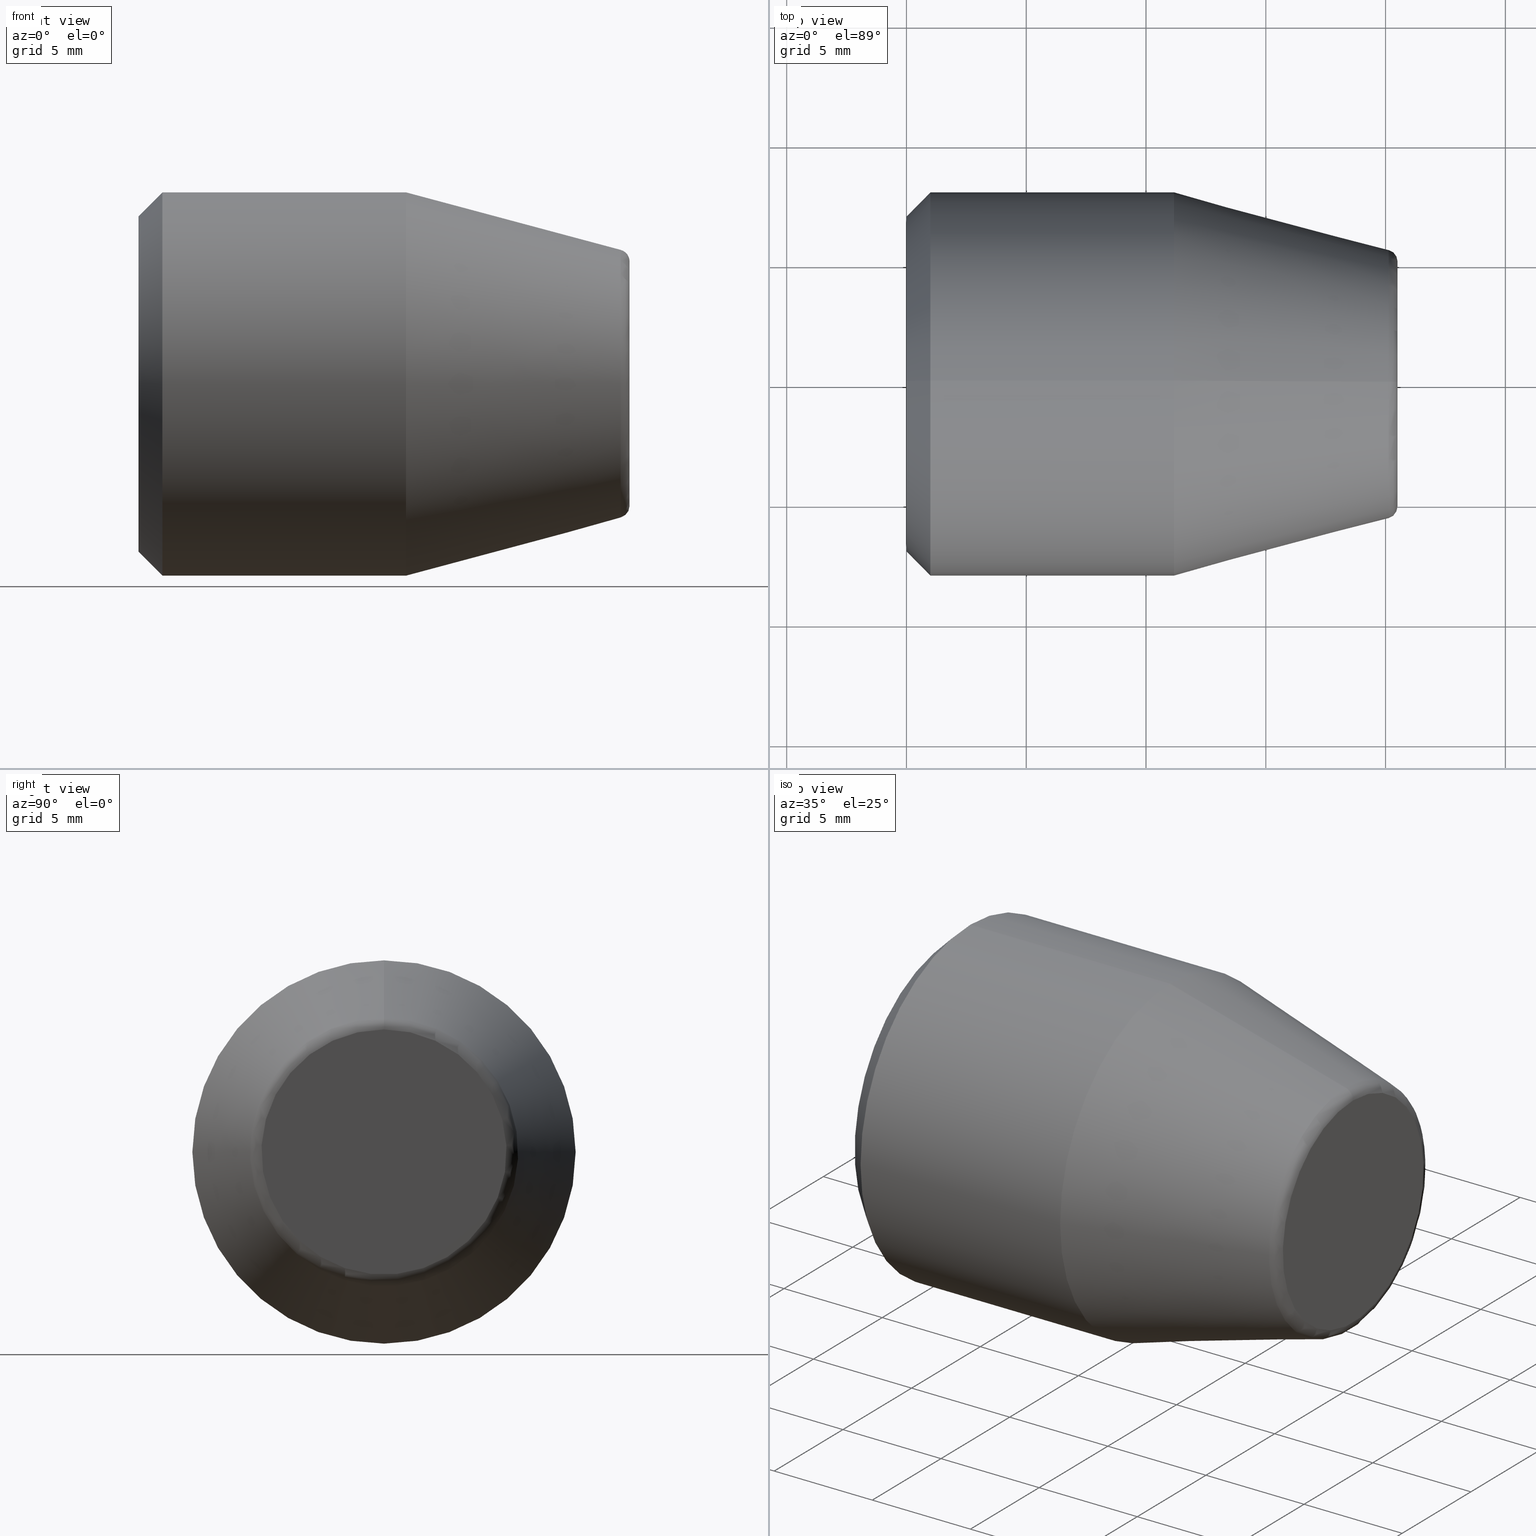
[diagram: canonical four-view strip — front | top / right | iso, engineering-drawing reading convention]
A machine part, canonical four-view strip (front | top / right | iso — engineering-drawing reading convention). The complete STEP part file that produces these views, byte-faithful:
ISO-10303-21;
HEADER;
FILE_DESCRIPTION (( 'STEP AP214' ),
    '1' );
FILE_NAME ('J00.100.016.021.STEP',
    '2022-05-19T09:20:16',
    ( '' ),
    ( '' ),
    'SwSTEP 2.0',
    'SolidWorks 2017',
    '' );
FILE_SCHEMA (( 'AUTOMOTIVE_DESIGN' ));
ENDSEC;

DATA;
#1 = CARTESIAN_POINT ( 'NONE',  ( 10.00000000000000000, 0.0000000000000000000, 0.0000000000000000000 ) ) ;
#2 = FACE_BOUND ( 'NONE', #224, .T. ) ;
#3 = EDGE_CURVE ( 'NONE', #145, #49, #368, .T. ) ;
#4 = VECTOR ( 'NONE', #229, 1000.000000000000200 ) ;
#5 = ORIENTED_EDGE ( 'NONE', *, *, #131, .T. ) ;
#6 = CARTESIAN_POINT ( 'NONE',  ( 10.00000000000000000, 2.309401076758503800, -4.000000000000000900 ) ) ;
#7 = CARTESIAN_POINT ( 'NONE',  ( 0.2538734953905270600, 1.948652659049114000, 4.000000000000002700 ) ) ;
#8 = EDGE_CURVE ( 'NONE', #21, #546, #38, .T. ) ;
#9 = FILL_AREA_STYLE ('',( #298 ) ) ;
#10 =( NAMED_UNIT ( * ) SI_UNIT ( $, .STERADIAN. ) SOLID_ANGLE_UNIT ( ) );
#11 = CARTESIAN_POINT ( 'NONE',  ( 0.6844111899594741400, -0.4041879333743195200, -4.000000000000000000 ) ) ;
#12 = EDGE_LOOP ( 'NONE', ( #457, #56, #188, #5, #285, #253 ) ) ;
#13 = DIRECTION ( 'NONE',  ( 0.0000000000000000000, 0.8660254037844386000, -0.5000000000000003300 ) ) ;
#14 = DIRECTION ( 'NONE',  ( 1.000000000000000000, 0.0000000000000000000, -0.0000000000000000000 ) ) ;
#15 = EDGE_CURVE ( 'NONE', #626, #626, #611, .T. ) ;
#16 = CARTESIAN_POINT ( 'NONE',  ( 0.2616367096296722800, -2.489839939905183800, -3.687470721369985300 ) ) ;
#17 = CONICAL_SURFACE ( 'NONE', #575, 8.000000000000000000, 0.7853981633974482800 ) ;
#18 = ORIENTED_EDGE ( 'NONE', *, *, #608, .F. ) ;
#19 = EDGE_LOOP ( 'NONE', ( #590 ) ) ;
#20 = DIRECTION ( 'NONE',  ( 0.0000000000000000000, 0.0000000000000000000, 1.000000000000000000 ) ) ;
#21 = VERTEX_POINT ( 'NONE', #170 ) ;
#22 = CARTESIAN_POINT ( 'NONE',  ( 0.4150543676130452600, 4.253854274071435300, -0.6321082693142530100 ) ) ;
#23 = PRODUCT_DEFINITION ( 'UNKNOWN', '', #564, #467 ) ;
#24 = DIRECTION ( 'NONE',  ( 0.0000000000000000000, 0.4999999999999997800, -0.8660254037844387100 ) ) ;
#25 = VECTOR ( 'NONE', #390, 1000.000000000000200 ) ;
#26 = FACE_OUTER_BOUND ( 'NONE', #501, .T. ) ;
#27 = ORIENTED_EDGE ( 'NONE', *, *, #59, .T. ) ;
#28 = CARTESIAN_POINT ( 'NONE',  ( 1.000000000000000000, 0.0000000000000000000, 0.0000000000000000000 ) ) ;
#29 = SURFACE_STYLE_USAGE ( .BOTH. , #32 ) ;
#30 = EDGE_CURVE ( 'NONE', #462, #337, #532, .T. ) ;
#31 = DIRECTION ( 'NONE',  ( -1.000000000000000000, -0.0000000000000000000, 0.0000000000000000000 ) ) ;
#32 = SURFACE_SIDE_STYLE ('',( #602 ) ) ;
#33 = CARTESIAN_POINT ( 'NONE',  ( 10.00000000000000000, 4.618802153517008500, -2.660187433275122900E-015 ) ) ;
#34 = DIRECTION ( 'NONE',  ( 1.000000000000000000, 0.0000000000000000000, 0.0000000000000000000 ) ) ;
#35 = MECHANICAL_DESIGN_GEOMETRIC_PRESENTATION_REPRESENTATION (  '', ( #533 ), #554 ) ;
#36 = B_SPLINE_CURVE_WITH_KNOTS ( 'NONE', 3,
 ( #236, #141, #186, #283, #500, #497, #594, #550, #105, #107, #340, #7, #553, #555 ),
 .UNSPECIFIED., .F., .F.,
 ( 4, 2, 2, 2, 2, 2, 4 ),
 ( 0.003041011842141596200, 0.004238236106116807400, 0.004836848238104413300, 0.005435460370092019100, 0.006632684634067230800, 0.007231296766054835800, 0.007829908898042440800 ),
 .UNSPECIFIED. ) ;
#37 = DIRECTION ( 'NONE',  ( 1.000000000000000000, 0.0000000000000000000, -0.0000000000000000000 ) ) ;
#38 = LINE ( 'NONE', #111, #313 ) ;
#39 = EDGE_LOOP ( 'NONE', ( #438 ) ) ;
#40 = DIRECTION ( 'NONE',  ( -1.000000000000000000, 0.0000000000000000000, 0.0000000000000000000 ) ) ;
#41 = APPLICATION_PROTOCOL_DEFINITION ( 'draft international standard', 'automotive_design', 1998, #328 ) ;
#42 = EDGE_CURVE ( 'NONE', #479, #193, #225, .T. ) ;
#43 = ADVANCED_BREP_SHAPE_REPRESENTATION ( 'J00.100.016.021', ( #507, #345 ), #259 ) ;
#44 = COLOUR_RGB ( '',0.6862745098039215700, 0.6078431372549019100, 0.5294117647058823600 ) ;
#45 = EDGE_LOOP ( 'NONE', ( #374 ) ) ;
#46 = CARTESIAN_POINT ( 'NONE',  ( 20.12940952255125600, 0.0000000000000000000, 5.599299419155053100 ) ) ;
#47 = FACE_OUTER_BOUND ( 'NONE', #167, .T. ) ;
#48 = DIRECTION ( 'NONE',  ( -1.000000000000000000, 0.0000000000000000000, 0.0000000000000000000 ) ) ;
#49 = VERTEX_POINT ( 'NONE', #135 ) ;
#50 = ORIENTED_EDGE ( 'NONE', *, *, #547, .F. ) ;
#51 = DIRECTION ( 'NONE',  ( 0.0000000000000000000, -0.5000000000000002200, -0.8660254037844384900 ) ) ;
#52 = CARTESIAN_POINT ( 'NONE',  ( 20.50000000000000000, 0.0000000000000000000, 0.0000000000000000000 ) ) ;
#53 = DIRECTION ( 'NONE',  ( -1.000000000000000000, -0.0000000000000000000, -0.0000000000000000000 ) ) ;
#54 = LINE ( 'NONE', #241, #323 ) ;
#55 = FACE_OUTER_BOUND ( 'NONE', #74, .T. ) ;
#56 = ORIENTED_EDGE ( 'NONE', *, *, #30, .T. ) ;
#57 = CARTESIAN_POINT ( 'NONE',  ( 0.08119784648299269200, -2.309401076758504700, -4.000000000000000900 ) ) ;
#58 = SURFACE_SIDE_STYLE ('',( #603 ) ) ;
#59 = EDGE_CURVE ( 'NONE', #483, #483, #149, .T. ) ;
#60 = CARTESIAN_POINT ( 'NONE',  ( 0.4174005900006742000, -1.573891664302362800, -4.000000000000000900 ) ) ;
#61 = FACE_BOUND ( 'NONE', #214, .T. ) ;
#62 = CARTESIAN_POINT ( 'NONE',  ( 0.6231881700867339900, 3.869969018718635700, -1.297017035861854000 ) ) ;
#63 = ORIENTED_EDGE ( 'NONE', *, *, #131, .F. ) ;
#64 = EDGE_LOOP ( 'NONE', ( #406, #18, #427 ) ) ;
#65 = ORIENTED_EDGE ( 'NONE', *, *, #3, .F. ) ;
#66 = DIRECTION ( 'NONE',  ( 0.0000000000000000000, 0.0000000000000000000, 1.000000000000000000 ) ) ;
#67 = EDGE_CURVE ( 'NONE', #552, #281, #102, .T. ) ;
#68 = UNCERTAINTY_MEASURE_WITH_UNIT (LENGTH_MEASURE( 1.000000000000000100E-005 ), #195, 'distance_accuracy_value', 'NONE');
#69 = CARTESIAN_POINT ( 'NONE',  ( 0.2616367096296723900, 2.489839939905184700, 3.687470721369984000 ) ) ;
#70 = DIRECTION ( 'NONE',  ( 0.0000000000000000000, -1.000000000000000000, -1.877893248421448300E-016 ) ) ;
#71 = FACE_BOUND ( 'NONE', #81, .T. ) ;
#72 = CARTESIAN_POINT ( 'NONE',  ( 0.5794568686004361000, 3.967190869616748800, -1.128623850500434900 ) ) ;
#73 = EDGE_CURVE ( 'NONE', #546, #337, #303, .T. ) ;
#74 = EDGE_LOOP ( 'NONE', ( #263, #387, #50 ) ) ;
#75 = CARTESIAN_POINT ( 'NONE',  ( 10.00000000000000000, -2.309401076758504700, -4.000000000000000900 ) ) ;
#76 = ADVANCED_FACE ( 'NONE', ( #331 ), #174, .T. ) ;
#77 = CARTESIAN_POINT ( 'NONE',  ( 10.00000000000000000, 2.309401076758504700, 4.000000000000000900 ) ) ;
#78 = DIRECTION ( 'NONE',  ( 0.0000000000000000000, 0.0000000000000000000, -1.000000000000000000 ) ) ;
#79 = DIRECTION ( 'NONE',  ( -1.000000000000000000, -0.0000000000000000000, -0.0000000000000000000 ) ) ;
#80 = CARTESIAN_POINT ( 'NONE',  ( 0.7008480878080847200, 3.266748298573009600, -2.341825971332365700 ) ) ;
#81 = EDGE_LOOP ( 'NONE', ( #159, #409, #571, #117, #234, #65 ) ) ;
#82 = CARTESIAN_POINT ( 'NONE',  ( 0.08119784648299269200, 4.618802153517007600, -1.734723475976807100E-015 ) ) ;
#83 = DIRECTION ( 'NONE',  ( -1.000000000000000000, 0.0000000000000000000, 0.0000000000000000000 ) ) ;
#84 = AXIS2_PLACEMENT_3D ( 'NONE', #33, #125, #581 ) ;
#85 = DIRECTION ( 'NONE',  ( -1.000000000000000000, -0.0000000000000000000, -0.0000000000000000000 ) ) ;
#86 = CARTESIAN_POINT ( 'NONE',  ( 10.00000000000000000, 4.618802153517007600, -1.734723475976807100E-015 ) ) ;
#87 = CARTESIAN_POINT ( 'NONE',  ( -3.622083305935164300, 0.0000000000000000000, 0.0000000000000000000 ) ) ;
#88 = PLANE ( 'NONE',  #333 ) ;
#89 = AXIS2_PLACEMENT_3D ( 'NONE', #77, #422, #472 ) ;
#90 = DIRECTION ( 'NONE',  ( 0.0000000000000000000, 0.0000000000000000000, 1.000000000000000000 ) ) ;
#91 = LINE ( 'NONE', #106, #595 ) ;
#92 = ORIENTED_EDGE ( 'NONE', *, *, #178, .F. ) ;
#93 = PRODUCT_RELATED_PRODUCT_CATEGORY ( 'part', '', ( #354 ) ) ;
#94 = AXIS2_PLACEMENT_3D ( 'NONE', #458, #309, #508 ) ;
#95 = LINE ( 'NONE', #134, #138 ) ;
#96 = ORIENTED_EDGE ( 'NONE', *, *, #372, .F. ) ;
#97 = CIRCLE ( 'NONE', #557, 8.000000000000000000 ) ;
#98 = ORIENTED_EDGE ( 'NONE', *, *, #276, .F. ) ;
#99 = DIRECTION ( 'NONE',  ( -1.000000000000000000, -0.0000000000000000000, 0.0000000000000000000 ) ) ;
#100 = CARTESIAN_POINT ( 'NONE',  ( 0.0000000000000000000, 0.0000000000000000000, 4.700000000000000200 ) ) ;
#101 = EDGE_CURVE ( 'NONE', #193, #179, #578, .T. ) ;
#102 = LINE ( 'NONE', #361, #4 ) ;
#103 = CARTESIAN_POINT ( 'NONE',  ( 10.00000000000000000, 3.464101615137754800, -2.000000000000000900 ) ) ;
#104 = EDGE_LOOP ( 'NONE', ( #577, #481, #156 ) ) ;
#105 = CARTESIAN_POINT ( 'NONE',  ( 0.6372498205524092000, 0.8022323920327941700, 4.000000000000000900 ) ) ;
#106 = CARTESIAN_POINT ( 'NONE',  ( 10.00000000000000000, -2.309401076758504700, -4.000000000000000900 ) ) ;
#107 = CARTESIAN_POINT ( 'NONE',  ( 0.4717933530190095400, 1.382801828582293200, 4.000000000000001800 ) ) ;
#108 = VECTOR ( 'NONE', #271, 1000.000000000000000 ) ;
#109 = ORIENTED_EDGE ( 'NONE', *, *, #372, .T. ) ;
#110 = CARTESIAN_POINT ( 'NONE',  ( 0.2603953882378624600, -1.951005993248784900, -4.000000000000000900 ) ) ;
#111 = CARTESIAN_POINT ( 'NONE',  ( 10.00000000000000000, -2.309401076758504300, 4.000000000000000000 ) ) ;
#112 = CARTESIAN_POINT ( 'NONE',  ( 10.00000000000000000, 4.618802153517008500, -2.660187433275122900E-015 ) ) ;
#113 = AXIS2_PLACEMENT_3D ( 'NONE', #446, #53, #201 ) ;
#114 = CARTESIAN_POINT ( 'NONE',  ( 0.4150543676130462600, 2.674348956204075600, 3.367891730685749000 ) ) ;
#115 = CARTESIAN_POINT ( 'NONE',  ( 0.6397945956621468000, -3.859617540109126800, -1.314946322746983100 ) ) ;
#116 = PLANE ( 'NONE',  #572 ) ;
#117 = ORIENTED_EDGE ( 'NONE', *, *, #306, .F. ) ;
#118 = LINE ( 'NONE', #373, #355 ) ;
#119 = B_SPLINE_CURVE_WITH_KNOTS ( 'NONE', 3,
 ( #606, #16, #164, #215, #610, #402, #516, #301, #115, #163, #160, #460 ),
 .UNSPECIFIED., .F., .F.,
 ( 4, 2, 2, 2, 2, 4 ),
 ( 2.544326305570727600E-007, 0.001193013274720901800, 0.001789392695766074400, 0.002385772116811247300, 0.003578530958901591700, 0.004771289800991936600 ),
 .UNSPECIFIED. ) ;
#120 = ORIENTED_EDGE ( 'NONE', *, *, #8, .T. ) ;
#121 = CARTESIAN_POINT ( 'NONE',  ( 0.6231881700867349900, 3.058234211556876100, 2.702982964138146600 ) ) ;
#122 = CARTESIAN_POINT ( 'NONE',  ( 0.2616367096296720600, -4.438363290370327600, 0.3125292786300177300 ) ) ;
#123 = DIRECTION ( 'NONE',  ( -0.0000000000000000000, 0.0000000000000000000, -1.000000000000000000 ) ) ;
#124 = ADVANCED_FACE ( 'NONE', ( #388 ), #226, .F. ) ;
#125 = DIRECTION ( 'NONE',  ( 1.000000000000000000, 0.0000000000000000000, -0.0000000000000000000 ) ) ;
#126 = CARTESIAN_POINT ( 'NONE',  ( 0.4150543676130445400, -4.253854274071435300, 0.6321082693142519000 ) ) ;
#127 = DIRECTION ( 'NONE',  ( 0.0000000000000000000, -0.0000000000000000000, 1.000000000000000000 ) ) ;
#128 = ADVANCED_FACE ( 'NONE', ( #445 ), #168, .F. ) ;
#129 = ORIENTED_EDGE ( 'NONE', *, *, #15, .T. ) ;
#130 = DIRECTION ( 'NONE',  ( 0.0000000000000000000, 0.0000000000000000000, -1.000000000000000000 ) ) ;
#131 = EDGE_CURVE ( 'NONE', #21, #193, #246, .T. ) ;
#132 = FACE_OUTER_BOUND ( 'NONE', #296, .T. ) ;
#133 = DIRECTION ( 'NONE',  ( 0.0000000000000000000, 0.0000000000000000000, 1.000000000000000000 ) ) ;
#134 = CARTESIAN_POINT ( 'NONE',  ( 10.00000000000000000, 2.309401076758503800, -4.000000000000000900 ) ) ;
#135 = CARTESIAN_POINT ( 'NONE',  ( 0.08119784648299269200, 4.618802153517007600, -1.734723475976807100E-015 ) ) ;
#136 = CARTESIAN_POINT ( 'NONE',  ( 10.00000000000000000, 0.0000000000000000000, -4.000000000000000900 ) ) ;
#137 = CARTESIAN_POINT ( 'NONE',  ( 0.6833601162637191800, 3.671414576779203500, -1.640923417369437400 ) ) ;
#138 = VECTOR ( 'NONE', #83, 1000.000000000000000 ) ;
#139 = EDGE_LOOP ( 'NONE', ( #27 ) ) ;
#140 = VERTEX_POINT ( 'NONE', #320 ) ;
#141 = CARTESIAN_POINT ( 'NONE',  ( 0.2603953882378634600, -1.951005993248783300, 4.000000000000000900 ) ) ;
#142 = EDGE_LOOP ( 'NONE', ( #439 ) ) ;
#143 = EDGE_CURVE ( 'NONE', #311, #311, #491, .T. ) ;
#144 = PRODUCT_DEFINITION_SHAPE ( 'NONE', 'NONE',  #23 ) ;
#145 = VERTEX_POINT ( 'NONE', #426 ) ;
#146 = AXIS2_PLACEMENT_3D ( 'NONE', #417, #529, #219 ) ;
#147 = CARTESIAN_POINT ( 'NONE',  ( 10.00000000000000000, -4.618802153517007600, 7.047314121155778800E-016 ) ) ;
#148 = FACE_OUTER_BOUND ( 'NONE', #480, .T. ) ;
#149 = CIRCLE ( 'NONE', #486, 4.700000000000000200 ) ;
#150 = ORIENTED_EDGE ( 'NONE', *, *, #242, .T. ) ;
#151 = CARTESIAN_POINT ( 'NONE',  ( 10.00000000000000000, 4.618802153517007600, -1.734723475976807100E-015 ) ) ;
#152 = DIRECTION ( 'NONE',  ( 0.0000000000000000000, -0.4999999999999997800, 0.8660254037844387100 ) ) ;
#153 = DIRECTION ( 'NONE',  ( -1.000000000000000000, 0.0000000000000000000, 0.0000000000000000000 ) ) ;
#154 = CIRCLE ( 'NONE', #599, 7.000000000000000000 ) ;
#155 = CARTESIAN_POINT ( 'NONE',  ( 0.4044273467006552200, 1.575166883349645700, -4.000000000000000900 ) ) ;
#156 = ORIENTED_EDGE ( 'NONE', *, *, #101, .F. ) ;
#157 = DIRECTION ( 'NONE',  ( 0.0000000000000000000, 0.5000000000000002200, 0.8660254037844384900 ) ) ;
#158 = DIRECTION ( 'NONE',  ( -0.0000000000000000000, 0.0000000000000000000, 1.000000000000000000 ) ) ;
#159 = ORIENTED_EDGE ( 'NONE', *, *, #208, .F. ) ;
#160 = CARTESIAN_POINT ( 'NONE',  ( 0.2626996021475743200, -4.437300397852643700, -0.3143702624736273200 ) ) ;
#161 = EDGE_LOOP ( 'NONE', ( #332 ) ) ;
#162 = EDGE_CURVE ( 'NONE', #314, #49, #187, .T. ) ;
#163 = CARTESIAN_POINT ( 'NONE',  ( 0.4183282770534254600, -4.250418377850120800, -0.6380594161391018900 ) ) ;
#164 = CARTESIAN_POINT ( 'NONE',  ( 0.4150543676130458700, -2.674348956204076100, -3.367891730685749900 ) ) ;
#165 = EDGE_CURVE ( 'NONE', #337, #21, #455, .T. ) ;
#166 = CIRCLE ( 'NONE', #216, 4.000000000000000000 ) ;
#167 = EDGE_LOOP ( 'NONE', ( #425, #514, #389 ) ) ;
#168 = PLANE ( 'NONE',  #84 ) ;
#169 = CARTESIAN_POINT ( 'NONE',  ( 0.5794568686004361000, -3.967190869616750600, 1.128623850500434700 ) ) ;
#170 = CARTESIAN_POINT ( 'NONE',  ( 10.00000000000000000, -3.464101615137754800, 2.000000000000000900 ) ) ;
#171 = CARTESIAN_POINT ( 'NONE',  ( 10.00000000000000000, 0.0000000000000000000, 0.0000000000000000000 ) ) ;
#172 = CARTESIAN_POINT ( 'NONE',  ( 0.6995623995302754400, -3.569155556774900700, 1.818041235549090300 ) ) ;
#173 = SHAPE_DEFINITION_REPRESENTATION ( #144, #43 ) ;
#174 = PLANE ( 'NONE',  #526 ) ;
#175 = FACE_OUTER_BOUND ( 'NONE', #64, .T. ) ;
#176 = ORIENTED_EDGE ( 'NONE', *, *, #400, .T. ) ;
#177 = CARTESIAN_POINT ( 'NONE',  ( 1.000000000000000000, 0.0000000000000000000, 0.0000000000000000000 ) ) ;
#178 = EDGE_CURVE ( 'NONE', #479, #145, #118, .T. ) ;
#179 = VERTEX_POINT ( 'NONE', #624 ) ;
#180 = ORIENTED_EDGE ( 'NONE', *, *, #434, .T. ) ;
#181 = CARTESIAN_POINT ( 'NONE',  ( 10.00000000000000000, -4.618802153517007600, 7.047314121155778800E-016 ) ) ;
#182 = DIRECTION ( 'NONE',  ( 0.0000000000000000000, -0.5000000000000001100, -0.8660254037844384900 ) ) ;
#183 = DIRECTION ( 'NONE',  ( -1.000000000000000000, 0.0000000000000000000, 0.0000000000000000000 ) ) ;
#184 = FILL_AREA_STYLE ('',( #493 ) ) ;
#185 = AXIS2_PLACEMENT_3D ( 'NONE', #288, #593, #334 ) ;
#186 = CARTESIAN_POINT ( 'NONE',  ( 0.4174005900006752500, -1.573891664302362400, 4.000000000000000000 ) ) ;
#187 = LINE ( 'NONE', #473, #342 ) ;
#188 = ORIENTED_EDGE ( 'NONE', *, *, #165, .T. ) ;
#189 = EDGE_CURVE ( 'NONE', #394, #394, #97, .T. ) ;
#190 = FACE_OUTER_BOUND ( 'NONE', #586, .T. ) ;
#191 = CARTESIAN_POINT ( 'NONE',  ( 10.00000000000000000, 4.618802153517008500, -2.660187433275122900E-015 ) ) ;
#192 = PRESENTATION_STYLE_ASSIGNMENT (( #494 ) ) ;
#193 = VERTEX_POINT ( 'NONE', #432 ) ;
#194 = CARTESIAN_POINT ( 'NONE',  ( 10.00000000000000000, -2.309401076758504300, 4.000000000000000000 ) ) ;
#195 =( LENGTH_UNIT ( ) NAMED_UNIT ( * ) SI_UNIT ( .MILLI., .METRE. ) );
#196 = DIRECTION ( 'NONE',  ( 0.0000000000000000000, 0.0000000000000000000, 1.000000000000000000 ) ) ;
#197 = ORIENTED_EDGE ( 'NONE', *, *, #276, .T. ) ;
#198 = ORIENTED_EDGE ( 'NONE', *, *, #619, .T. ) ;
#199 = SURFACE_STYLE_USAGE ( .BOTH. , #536 ) ;
#200 = CARTESIAN_POINT ( 'NONE',  ( 0.7000649608719613500, -0.2016098453673461600, -4.000000000000000000 ) ) ;
#201 = DIRECTION ( 'NONE',  ( 0.0000000000000000000, 0.0000000000000000000, 1.000000000000000000 ) ) ;
#202 = DIRECTION ( 'NONE',  ( 0.0000000000000000000, 1.000000000000000000, 0.0000000000000000000 ) ) ;
#203 = DIRECTION ( 'NONE',  ( 0.0000000000000000000, 0.4999999999999997200, -0.8660254037844387100 ) ) ;
#204 = ORIENTED_EDGE ( 'NONE', *, *, #143, .T. ) ;
#205 = FACE_OUTER_BOUND ( 'NONE', #12, .T. ) ;
#206 = ORIENTED_EDGE ( 'NONE', *, *, #189, .F. ) ;
#207 = CARTESIAN_POINT ( 'NONE',  ( 20.49999999999999600, 5.116336506010513900, 0.0000000000000000000 ) ) ;
#208 = EDGE_CURVE ( 'NONE', #447, #145, #36, .T. ) ;
#209 = DIRECTION ( 'NONE',  ( -1.000000000000000000, -0.0000000000000000000, -0.0000000000000000000 ) ) ;
#210 = ADVANCED_FACE ( 'NONE', ( #326 ), #399, .T. ) ;
#211 = VERTEX_POINT ( 'NONE', #487 ) ;
#212 = FACE_OUTER_BOUND ( 'NONE', #139, .T. ) ;
#213 = CARTESIAN_POINT ( 'NONE',  ( 10.00000000000000000, 4.618802153517007600, -1.734723475976807100E-015 ) ) ;
#214 = EDGE_LOOP ( 'NONE', ( #561 ) ) ;
#215 = CARTESIAN_POINT ( 'NONE',  ( 0.5794568686004372100, -2.961012360658761700, -2.871376149499566700 ) ) ;
#216 = AXIS2_PLACEMENT_3D ( 'NONE', #1, #384, #543 ) ;
#217 = CARTESIAN_POINT ( 'NONE',  ( 10.00000000000000000, 4.618802153517008500, -2.660187433275122900E-015 ) ) ;
#218 = CARTESIAN_POINT ( 'NONE',  ( 0.7008480878080849400, -3.266748298573010100, 2.341825971332366100 ) ) ;
#219 = DIRECTION ( 'NONE',  ( 0.0000000000000000000, 1.776356839400250500E-015, -1.000000000000000000 ) ) ;
#220 = CARTESIAN_POINT ( 'NONE',  ( 0.6397945956621470300, 3.068585690166383700, -2.685053677253018000 ) ) ;
#221 = EDGE_CURVE ( 'NONE', #211, #211, #336, .T. ) ;
#222 = ADVANCED_FACE ( 'NONE', ( #205, #589 ), #485, .F. ) ;
#223 = FACE_OUTER_BOUND ( 'NONE', #562, .T. ) ;
#224 = EDGE_LOOP ( 'NONE', ( #270 ) ) ;
#225 = LINE ( 'NONE', #369, #408 ) ;
#226 = PLANE ( 'NONE',  #322 ) ;
#227 = ORIENTED_EDGE ( 'NONE', *, *, #162, .T. ) ;
#228 = CARTESIAN_POINT ( 'NONE',  ( 10.00000000000000000, 4.618802153517008500, -2.660187433275122900E-015 ) ) ;
#229 = DIRECTION ( 'NONE',  ( 0.0000000000000000000, 0.5000000000000001100, 0.8660254037844384900 ) ) ;
#230 = DIRECTION ( 'NONE',  ( -1.000000000000000000, -0.0000000000000000000, 0.0000000000000000000 ) ) ;
#231 = PLANE ( 'NONE',  #249 ) ;
#232 = DIRECTION ( 'NONE',  ( -1.000000000000000000, -0.0000000000000000000, -0.0000000000000000000 ) ) ;
#233 = AXIS2_PLACEMENT_3D ( 'NONE', #256, #556, #203 ) ;
#234 = ORIENTED_EDGE ( 'NONE', *, *, #434, .F. ) ;
#235 = ORIENTED_EDGE ( 'NONE', *, *, #42, .T. ) ;
#236 = CARTESIAN_POINT ( 'NONE',  ( 0.08119784648299342700, -2.309401076758504300, 4.000000000000000000 ) ) ;
#237 = UNCERTAINTY_MEASURE_WITH_UNIT (LENGTH_MEASURE( 1.000000000000000100E-005 ), #570, 'distance_accuracy_value', 'NONE');
#238 = VECTOR ( 'NONE', #567, 1000.000000000000000 ) ;
#239 = ORIENTED_EDGE ( 'NONE', *, *, #3, .T. ) ;
#240 = CONICAL_SURFACE ( 'NONE', #113, 4.700000000000000200, 0.7853981633974482800 ) ;
#241 = CARTESIAN_POINT ( 'NONE',  ( 10.00000000000000000, -4.618802153517007600, 7.047314121155778800E-016 ) ) ;
#242 = EDGE_CURVE ( 'NONE', #140, #462, #91, .T. ) ;
#243 = DIRECTION ( 'NONE',  ( 0.0000000000000000000, -0.8660254037844386000, 0.5000000000000003300 ) ) ;
#244 = FACE_OUTER_BOUND ( 'NONE', #560, .T. ) ;
#245 = ORIENTED_EDGE ( 'NONE', *, *, #420, .F. ) ;
#246 = CIRCLE ( 'NONE', #146, 4.000000000000000000 ) ;
#247 = ORIENTED_EDGE ( 'NONE', *, *, #178, .T. ) ;
#248 = CARTESIAN_POINT ( 'NONE',  ( 0.08119784648299306600, 2.309401076758503800, -4.000000000000000900 ) ) ;
#249 = AXIS2_PLACEMENT_3D ( 'NONE', #191, #382, #386 ) ;
#250 = CARTESIAN_POINT ( 'NONE',  ( -3.622083305935164300, 0.0000000000000000000, 0.0000000000000000000 ) ) ;
#251 = VERTEX_POINT ( 'NONE', #46 ) ;
#252 = LINE ( 'NONE', #287, #538 ) ;
#253 = ORIENTED_EDGE ( 'NONE', *, *, #547, .T. ) ;
#254 = EDGE_LOOP ( 'NONE', ( #545 ) ) ;
#255 = APPLICATION_PROTOCOL_DEFINITION ( 'draft international standard', 'automotive_design', 1998, #297 ) ;
#256 = CARTESIAN_POINT ( 'NONE',  ( 10.00000000000000000, 4.618802153517007600, -1.734723475976807100E-015 ) ) ;
#257 = AXIS2_PLACEMENT_3D ( 'NONE', #324, #230, #318 ) ;
#258 = PLANE ( 'NONE',  #300 ) ;
#259 =( GEOMETRIC_REPRESENTATION_CONTEXT ( 3 ) GLOBAL_UNCERTAINTY_ASSIGNED_CONTEXT ( ( #68 ) ) GLOBAL_UNIT_ASSIGNED_CONTEXT ( ( #195, #582, #375 ) ) REPRESENTATION_CONTEXT ( 'NONE', 'WORKASPACE' ) );
#260 = CARTESIAN_POINT ( 'NONE',  ( 0.2616367096296725000, 4.438363290370329400, -0.3125292786300177800 ) ) ;
#261 = ADVANCED_FACE ( 'NONE', ( #212, #71 ), #240, .F. ) ;
#262 = VERTEX_POINT ( 'NONE', #443 ) ;
#263 = ORIENTED_EDGE ( 'NONE', *, *, #453, .F. ) ;
#264 = CARTESIAN_POINT ( 'NONE',  ( 10.00000000000000000, 4.618802153517008500, -2.660187433275122900E-015 ) ) ;
#265 = AXIS2_PLACEMENT_3D ( 'NONE', #87, #299, #196 ) ;
#266 = ADVANCED_FACE ( 'NONE', ( #132 ), #600, .T. ) ;
#267 =( NAMED_UNIT ( * ) PLANE_ANGLE_UNIT ( ) SI_UNIT ( $, .RADIAN. ) );
#268 = FACE_OUTER_BOUND ( 'NONE', #343, .T. ) ;
#269 = PLANE ( 'NONE',  #630 ) ;
#270 = ORIENTED_EDGE ( 'NONE', *, *, #59, .F. ) ;
#271 = DIRECTION ( 'NONE',  ( 0.0000000000000000000, -0.4999999999999997200, 0.8660254037844388200 ) ) ;
#272 = AXIS2_PLACEMENT_3D ( 'NONE', #339, #99, #441 ) ;
#273 = DIRECTION ( 'NONE',  ( 1.000000000000000000, 0.0000000000000000000, -0.0000000000000000000 ) ) ;
#274 = CARTESIAN_POINT ( 'NONE',  ( 0.6397945956621473600, -3.068585690166382800, 2.685053677253017100 ) ) ;
#275 = CARTESIAN_POINT ( 'NONE',  ( 0.6231881700867339900, -3.869969018718636200, 1.297017035861854200 ) ) ;
#276 = EDGE_CURVE ( 'NONE', #140, #579, #365, .T. ) ;
#277 = FACE_BOUND ( 'NONE', #19, .T. ) ;
#278 = EDGE_LOOP ( 'NONE', ( #492, #98, #150, #109, #612 ) ) ;
#279 = EDGE_LOOP ( 'NONE', ( #129 ) ) ;
#280 = CARTESIAN_POINT ( 'NONE',  ( 0.6397945956621469100, 3.859617540109128200, 1.314946322746982400 ) ) ;
#281 = VERTEX_POINT ( 'NONE', #103 ) ;
#282 = CARTESIAN_POINT ( 'NONE',  ( 11.00000000000000000, 0.0000000000000000000, 0.0000000000000000000 ) ) ;
#283 = CARTESIAN_POINT ( 'NONE',  ( 0.5820503049828371600, -0.9958057073548140000, 4.000000000000000000 ) ) ;
#284 = VECTOR ( 'NONE', #70, 1000.000000000000000 ) ;
#285 = ORIENTED_EDGE ( 'NONE', *, *, #101, .T. ) ;
#286 = AXIS2_PLACEMENT_3D ( 'NONE', #378, #584, #476 ) ;
#287 = CARTESIAN_POINT ( 'NONE',  ( 10.00000000000000000, -4.618802153517007600, 7.047314121155778800E-016 ) ) ;
#288 = CARTESIAN_POINT ( 'NONE',  ( 20.12940952255125600, 0.0000000000000000000, 0.0000000000000000000 ) ) ;
#289 = EDGE_LOOP ( 'NONE', ( #291, #245, #63 ) ) ;
#290 = ORIENTED_EDGE ( 'NONE', *, *, #625, .F. ) ;
#291 = ORIENTED_EDGE ( 'NONE', *, *, #465, .F. ) ;
#292 = DIRECTION ( 'NONE',  ( 0.0000000000000000000, 0.4999999999999997800, -0.8660254037844387100 ) ) ;
#293 = DIRECTION ( 'NONE',  ( -1.000000000000000000, -0.0000000000000000000, -0.0000000000000000000 ) ) ;
#294 = AXIS2_PLACEMENT_3D ( 'NONE', #392, #13, #157 ) ;
#295 = CARTESIAN_POINT ( 'NONE',  ( 0.6253778157555294200, -0.8005999865725079700, -4.000000000000001800 ) ) ;
#296 = EDGE_LOOP ( 'NONE', ( #357, #290, #534, #120, #395 ) ) ;
#297 = APPLICATION_CONTEXT ( 'automotive_design' ) ;
#298 = FILL_AREA_STYLE_COLOUR ( '', #502 ) ;
#299 = DIRECTION ( 'NONE',  ( -1.000000000000000000, -0.0000000000000000000, -0.0000000000000000000 ) ) ;
#300 = AXIS2_PLACEMENT_3D ( 'NONE', #264, #14, #563 ) ;
#301 = CARTESIAN_POINT ( 'NONE',  ( 0.7008480878080843900, -3.661454931702502700, -1.658174028667635600 ) ) ;
#302 = EDGE_LOOP ( 'NONE', ( #204 ) ) ;
#303 = LINE ( 'NONE', #181, #471 ) ;
#304 = DIRECTION ( 'NONE',  ( 0.0000000000000000000, 0.0000000000000000000, 1.000000000000000000 ) ) ;
#305 = ORIENTED_EDGE ( 'NONE', *, *, #583, .T. ) ;
#306 = EDGE_CURVE ( 'NONE', #511, #579, #421, .T. ) ;
#307 = B_SPLINE_CURVE_WITH_KNOTS ( 'NONE', 3,
 ( #613, #260, #22, #72, #62, #137, #325, #80, #220, #573, #464, #620 ),
 .UNSPECIFIED., .F., .F.,
 ( 4, 2, 2, 2, 2, 4 ),
 ( 2.544326305577339700E-007, 0.001193013274720901800, 0.001789392695766073600, 0.002385772116811245600, 0.003578530958901589500, 0.004771289800991934800 ),
 .UNSPECIFIED. ) ;
#308 = ADVANCED_FACE ( 'NONE', ( #544, #629 ), #559, .T. ) ;
#309 = DIRECTION ( 'NONE',  ( -1.000000000000000000, -0.0000000000000000000, -0.0000000000000000000 ) ) ;
#310 = ADVANCED_FACE ( 'NONE', ( #523, #190 ), #364, .T. ) ;
#311 = VERTEX_POINT ( 'NONE', #548 ) ;
#312 = CARTESIAN_POINT ( 'NONE',  ( 10.00000000000000000, -2.309401076758504700, -4.000000000000000900 ) ) ;
#313 = VECTOR ( 'NONE', #403, 1000.000000000000200 ) ;
#314 = VERTEX_POINT ( 'NONE', #213 ) ;
#315 = CARTESIAN_POINT ( 'NONE',  ( 0.4183282770534252300, 4.250418377850120800, 0.6380594161391004400 ) ) ;
#316 = ADVANCED_FACE ( 'NONE', ( #423 ), #116, .F. ) ;
#317 = DIRECTION ( 'NONE',  ( 1.000000000000000000, 0.0000000000000000000, 0.0000000000000000000 ) ) ;
#318 = DIRECTION ( 'NONE',  ( 0.0000000000000000000, -1.776356839400250500E-015, -1.000000000000000000 ) ) ;
#319 = CARTESIAN_POINT ( 'NONE',  ( 0.0000000000000000000, 4.700000000000000200, 0.0000000000000000000 ) ) ;
#320 = CARTESIAN_POINT ( 'NONE',  ( 10.00000000000000000, -2.309401076758504700, -4.000000000000000900 ) ) ;
#321 = CARTESIAN_POINT ( 'NONE',  ( 0.08119784648299342700, -2.309401076758504300, 4.000000000000000000 ) ) ;
#322 = AXIS2_PLACEMENT_3D ( 'NONE', #217, #37, #466 ) ;
#323 = VECTOR ( 'NONE', #292, 1000.000000000000100 ) ;
#324 = CARTESIAN_POINT ( 'NONE',  ( 10.00000000000000000, 0.0000000000000000000, 0.0000000000000000000 ) ) ;
#325 = CARTESIAN_POINT ( 'NONE',  ( 0.6995623995302758800, 3.569155556774900700, -1.818041235549090300 ) ) ;
#326 = FACE_OUTER_BOUND ( 'NONE', #424, .T. ) ;
#327 = CARTESIAN_POINT ( 'NONE',  ( 0.08119784648299342700, -2.309401076758504300, 4.000000000000000000 ) ) ;
#328 = APPLICATION_CONTEXT ( 'automotive_design' ) ;
#329 = DIRECTION ( 'NONE',  ( 0.0000000000000000000, 0.0000000000000000000, 1.000000000000000000 ) ) ;
#330 = PRESENTATION_LAYER_ASSIGNMENT (  '', '', ( #475 ) ) ;
#331 = FACE_OUTER_BOUND ( 'NONE', #278, .T. ) ;
#332 = ORIENTED_EDGE ( 'NONE', *, *, #541, .F. ) ;
#333 = AXIS2_PLACEMENT_3D ( 'NONE', #6, #243, #51 ) ;
#334 = DIRECTION ( 'NONE',  ( 0.0000000000000000000, 0.0000000000000000000, 1.000000000000000000 ) ) ;
#335 = CLOSED_SHELL ( 'NONE', ( #261, #352, #308, #519, #506, #316, #310, #609, #210, #515, #266, #527, #76, #430, #510, #128, #124, #362, #607, #404, #222 ) ) ;
#336 = CIRCLE ( 'NONE', #381, 5.116336506010513900 ) ;
#337 = VERTEX_POINT ( 'NONE', #518 ) ;
#338 = EDGE_CURVE ( 'NONE', #579, #512, #119, .T. ) ;
#339 = CARTESIAN_POINT ( 'NONE',  ( 10.00000000000000000, 0.0000000000000000000, 0.0000000000000000000 ) ) ;
#340 = CARTESIAN_POINT ( 'NONE',  ( 0.4044273467006553300, 1.575166883349645700, 4.000000000000001800 ) ) ;
#341 = ORIENTED_EDGE ( 'NONE', *, *, #625, .T. ) ;
#342 = VECTOR ( 'NONE', #40, 1000.000000000000000 ) ;
#343 = EDGE_LOOP ( 'NONE', ( #351, #96, #440 ) ) ;
#344 =( NAMED_UNIT ( * ) PLANE_ANGLE_UNIT ( ) SI_UNIT ( $, .RADIAN. ) );
#345 = AXIS2_PLACEMENT_3D ( 'NONE', #489, #396, #598 ) ;
#346 = CARTESIAN_POINT ( 'NONE',  ( 0.1705244939631147500, 2.130747781798262100, -4.000000000000001800 ) ) ;
#347 = COLOUR_RGB ( '',0.6862745098039215700, 0.6078431372549019100, 0.5294117647058823600 ) ;
#348 = CONICAL_SURFACE ( 'NONE', #94, 4.000000000000000000, 1.221730476396026600 ) ;
#349 = CARTESIAN_POINT ( 'NONE',  ( 0.6998694592878295100, 0.4070739401600504400, -4.000000000000000000 ) ) ;
#350 = AXIS2_PLACEMENT_3D ( 'NONE', #28, #79, #469 ) ;
#351 = ORIENTED_EDGE ( 'NONE', *, *, #67, .F. ) ;
#352 = ADVANCED_FACE ( 'NONE', ( #244, #61 ), #413, .T. ) ;
#353 = CARTESIAN_POINT ( 'NONE',  ( 0.0000000000000000000, 0.0000000000000000000, 0.0000000000000000000 ) ) ;
#354 = PRODUCT ( 'J00.100.016.021', 'J00.100.016.021', '', ( #451 ) ) ;
#355 = VECTOR ( 'NONE', #183, 1000.000000000000000 ) ;
#356 = DIRECTION ( 'NONE',  ( -1.000000000000000000, -0.0000000000000000000, -0.0000000000000000000 ) ) ;
#357 = ORIENTED_EDGE ( 'NONE', *, *, #435, .T. ) ;
#358 = MECHANICAL_DESIGN_GEOMETRIC_PRESENTATION_REPRESENTATION (  '', ( #475 ), #391 ) ;
#359 = CARTESIAN_POINT ( 'NONE',  ( 20.12940952255125600, 0.0000000000000000000, 0.0000000000000000000 ) ) ;
#360 = CARTESIAN_POINT ( 'NONE',  ( 0.7008480878080847200, 3.661454931702501800, 1.658174028667633400 ) ) ;
#361 = CARTESIAN_POINT ( 'NONE',  ( 10.00000000000000000, 2.309401076758503800, -4.000000000000000900 ) ) ;
#362 = ADVANCED_FACE ( 'NONE', ( #55 ), #566, .F. ) ;
#363 = CARTESIAN_POINT ( 'NONE',  ( 0.08119784648299269200, -4.618802153517007600, 7.047314121155778800E-016 ) ) ;
#364 = TOROIDAL_SURFACE ( 'NONE', #498, 5.116336506010517500, 0.5000000000000004400 ) ;
#365 = LINE ( 'NONE', #450, #617 ) ;
#366 = CARTESIAN_POINT ( 'NONE',  ( 0.0000000000000000000, 0.0000000000000000000, 0.0000000000000000000 ) ) ;
#367 = CARTESIAN_POINT ( 'NONE',  ( 10.00000000000000000, -2.309401076758504300, 4.000000000000000000 ) ) ;
#368 = B_SPLINE_CURVE_WITH_KNOTS ( 'NONE', 3,
 ( #565, #69, #114, #411, #121, #558, #517, #360, #280, #315, #614, #82 ),
 .UNSPECIFIED., .F., .F.,
 ( 4, 2, 2, 2, 2, 4 ),
 ( 2.544326305578076700E-007, 0.001193013274720903300, 0.001789392695766076200, 0.002385772116811249000, 0.003578530958901593900, 0.004771289800991939200 ),
 .UNSPECIFIED. ) ;
#369 = CARTESIAN_POINT ( 'NONE',  ( 10.00000000000000000, 2.309401076758504700, 4.000000000000000900 ) ) ;
#370 = CARTESIAN_POINT ( 'NONE',  ( 0.08119784648299306600, 2.309401076758503800, -4.000000000000000900 ) ) ;
#371 = DIRECTION ( 'NONE',  ( 0.0000000000000000000, -1.000000000000000000, -1.877893248421448300E-016 ) ) ;
#372 = EDGE_CURVE ( 'NONE', #462, #552, #569, .T. ) ;
#373 = CARTESIAN_POINT ( 'NONE',  ( 10.00000000000000000, 2.309401076758504700, 4.000000000000000900 ) ) ;
#374 = ORIENTED_EDGE ( 'NONE', *, *, #221, .F. ) ;
#375 =( NAMED_UNIT ( * ) SI_UNIT ( $, .STERADIAN. ) SOLID_ANGLE_UNIT ( ) );
#376 = ORIENTED_EDGE ( 'NONE', *, *, #420, .T. ) ;
#377 = ORIENTED_EDGE ( 'NONE', *, *, #221, .T. ) ;
#378 = CARTESIAN_POINT ( 'NONE',  ( 10.00000000000000000, 0.0000000000000000000, 0.0000000000000000000 ) ) ;
#379 = LINE ( 'NONE', #194, #478 ) ;
#380 = ORIENTED_EDGE ( 'NONE', *, *, #67, .T. ) ;
#381 = AXIS2_PLACEMENT_3D ( 'NONE', #52, #293, #504 ) ;
#382 = DIRECTION ( 'NONE',  ( 1.000000000000000000, 0.0000000000000000000, -0.0000000000000000000 ) ) ;
#383 = UNCERTAINTY_MEASURE_WITH_UNIT (LENGTH_MEASURE( 1.000000000000000100E-005 ), #549, 'distance_accuracy_value', 'NONE');
#384 = DIRECTION ( 'NONE',  ( -1.000000000000000000, -0.0000000000000000000, 0.0000000000000000000 ) ) ;
#385 = FACE_OUTER_BOUND ( 'NONE', #279, .T. ) ;
#386 = DIRECTION ( 'NONE',  ( -0.0000000000000000000, 0.0000000000000000000, -1.000000000000000000 ) ) ;
#387 = ORIENTED_EDGE ( 'NONE', *, *, #619, .F. ) ;
#388 = FACE_OUTER_BOUND ( 'NONE', #104, .T. ) ;
#389 = ORIENTED_EDGE ( 'NONE', *, *, #165, .F. ) ;
#390 = DIRECTION ( 'NONE',  ( 0.0000000000000000000, 0.5000000000000001100, 0.8660254037844384900 ) ) ;
#391 =( GEOMETRIC_REPRESENTATION_CONTEXT ( 3 ) GLOBAL_UNCERTAINTY_ASSIGNED_CONTEXT ( ( #383 ) ) GLOBAL_UNIT_ASSIGNED_CONTEXT ( ( #549, #344, #393 ) ) REPRESENTATION_CONTEXT ( 'NONE', 'WORKASPACE' ) );
#392 = CARTESIAN_POINT ( 'NONE',  ( 10.00000000000000000, -2.309401076758504300, 4.000000000000000000 ) ) ;
#393 =( NAMED_UNIT ( * ) SI_UNIT ( $, .STERADIAN. ) SOLID_ANGLE_UNIT ( ) );
#394 = VERTEX_POINT ( 'NONE', #431 ) ;
#395 = ORIENTED_EDGE ( 'NONE', *, *, #568, .T. ) ;
#396 = DIRECTION ( 'NONE',  ( 0.0000000000000000000, 0.0000000000000000000, 1.000000000000000000 ) ) ;
#397 = DIRECTION ( 'NONE',  ( -1.000000000000000000, -0.0000000000000000000, -0.0000000000000000000 ) ) ;
#398 =( NAMED_UNIT ( * ) PLANE_ANGLE_UNIT ( ) SI_UNIT ( $, .RADIAN. ) );
#399 = PLANE ( 'NONE',  #233 ) ;
#400 = EDGE_CURVE ( 'NONE', #601, #601, #154, .T. ) ;
#401 = PRESENTATION_LAYER_ASSIGNMENT (  '', '', ( #542 ) ) ;
#402 = CARTESIAN_POINT ( 'NONE',  ( 0.6833601162637197300, -3.256788653496307500, -2.359076582630565100 ) ) ;
#403 = DIRECTION ( 'NONE',  ( 0.0000000000000000000, -0.5000000000000001100, -0.8660254037844384900 ) ) ;
#404 = ADVANCED_FACE ( 'NONE', ( #499 ), #348, .F. ) ;
#405 = DIRECTION ( 'NONE',  ( 1.000000000000000000, 0.0000000000000000000, -0.0000000000000000000 ) ) ;
#406 = ORIENTED_EDGE ( 'NONE', *, *, #242, .F. ) ;
#407 = AXIS2_PLACEMENT_3D ( 'NONE', #171, #31, #78 ) ;
#408 = VECTOR ( 'NONE', #371, 1000.000000000000000 ) ;
#409 = ORIENTED_EDGE ( 'NONE', *, *, #435, .F. ) ;
#410 = CARTESIAN_POINT ( 'NONE',  ( 10.00000000000000000, 2.309401076758504700, 4.000000000000000900 ) ) ;
#411 = CARTESIAN_POINT ( 'NONE',  ( 0.5794568686004374400, 2.961012360658761700, 2.871376149499565800 ) ) ;
#412 = CARTESIAN_POINT ( 'NONE',  ( 0.08119784648299269200, -4.618802153517007600, 7.047314121155778800E-016 ) ) ;
#413 = CONICAL_SURFACE ( 'NONE', #461, 5.599299419155053100, 0.2617993877991426900 ) ;
#414 = CARTESIAN_POINT ( 'NONE',  ( 10.00000000000000000, -4.618802153517007600, 7.047314121155778800E-016 ) ) ;
#415 = ORIENTED_EDGE ( 'NONE', *, *, #568, .F. ) ;
#416 = AXIS2_PLACEMENT_3D ( 'NONE', #319, #34, #419 ) ;
#417 = CARTESIAN_POINT ( 'NONE',  ( 10.00000000000000000, 0.0000000000000000000, 0.0000000000000000000 ) ) ;
#418 = PLANE ( 'NONE',  #89 ) ;
#419 = DIRECTION ( 'NONE',  ( 0.0000000000000000000, 0.0000000000000000000, -1.000000000000000000 ) ) ;
#420 = EDGE_CURVE ( 'NONE', #193, #262, #576, .T. ) ;
#421 = B_SPLINE_CURVE_WITH_KNOTS ( 'NONE', 3,
 ( #248, #346, #496, #155, #452, #596, #349, #200, #11, #295, #448, #60, #110, #57 ),
 .UNSPECIFIED., .F., .F.,
 ( 4, 2, 2, 2, 2, 2, 4 ),
 ( 0.002449405770502674200, 0.003047592430360879800, 0.003645779090219085700, 0.004842152409935497600, 0.005440339069793703600, 0.006038525729651908700, 0.007234899049368319700 ),
 .UNSPECIFIED. ) ;
#422 = DIRECTION ( 'NONE',  ( 0.0000000000000000000, 1.877893248421448000E-016, -1.000000000000000000 ) ) ;
#423 = FACE_OUTER_BOUND ( 'NONE', #45, .T. ) ;
#424 = EDGE_LOOP ( 'NONE', ( #239, #463, #605, #305, #247 ) ) ;
#425 = ORIENTED_EDGE ( 'NONE', *, *, #73, .F. ) ;
#426 = CARTESIAN_POINT ( 'NONE',  ( 0.08119784648299269200, 2.309401076758504700, 4.000000000000000900 ) ) ;
#427 = ORIENTED_EDGE ( 'NONE', *, *, #30, .F. ) ;
#428 = FILL_AREA_STYLE_COLOUR ( '', #44 ) ;
#429 =( GEOMETRIC_REPRESENTATION_CONTEXT ( 3 ) GLOBAL_UNCERTAINTY_ASSIGNED_CONTEXT ( ( #237 ) ) GLOBAL_UNIT_ASSIGNED_CONTEXT ( ( #570, #267, #525 ) ) REPRESENTATION_CONTEXT ( 'NONE', 'WORKASPACE' ) );
#430 = ADVANCED_FACE ( 'NONE', ( #175 ), #258, .F. ) ;
#431 = CARTESIAN_POINT ( 'NONE',  ( 11.16987298107755700, 0.0000000000000000000, 8.000000000000000000 ) ) ;
#432 = CARTESIAN_POINT ( 'NONE',  ( 10.00000000000000000, -7.511572993685793200E-016, 4.000000000000000000 ) ) ;
#433 = ORIENTED_EDGE ( 'NONE', *, *, #608, .T. ) ;
#434 = EDGE_CURVE ( 'NONE', #49, #511, #307, .T. ) ;
#435 = EDGE_CURVE ( 'NONE', #512, #447, #505, .T. ) ;
#436 = UNCERTAINTY_MEASURE_WITH_UNIT (LENGTH_MEASURE( 1.000000000000000100E-005 ), #503, 'distance_accuracy_value', 'NONE');
#437 = LINE ( 'NONE', #151, #520 ) ;
#438 = ORIENTED_EDGE ( 'NONE', *, *, #15, .F. ) ;
#439 = ORIENTED_EDGE ( 'NONE', *, *, #143, .F. ) ;
#440 = ORIENTED_EDGE ( 'NONE', *, *, #597, .F. ) ;
#441 = DIRECTION ( 'NONE',  ( 0.0000000000000000000, 8.881784197001252300E-016, -1.000000000000000000 ) ) ;
#442 = CARTESIAN_POINT ( 'NONE',  ( 1.000000000000000000, 0.0000000000000000000, 8.000000000000000000 ) ) ;
#443 = CARTESIAN_POINT ( 'NONE',  ( 10.00000000000000000, -2.309401076758504300, 4.000000000000000000 ) ) ;
#444 = LINE ( 'NONE', #587, #25 ) ;
#445 = FACE_OUTER_BOUND ( 'NONE', #289, .T. ) ;
#446 = CARTESIAN_POINT ( 'NONE',  ( 0.0000000000000000000, 0.0000000000000000000, 0.0000000000000000000 ) ) ;
#447 = VERTEX_POINT ( 'NONE', #321 ) ;
#448 = CARTESIAN_POINT ( 'NONE',  ( 0.5820503049828365000, -0.9958057073548136600, -4.000000000000000900 ) ) ;
#449 = MECHANICAL_DESIGN_GEOMETRIC_PRESENTATION_REPRESENTATION (  '', ( #542 ), #429 ) ;
#450 = CARTESIAN_POINT ( 'NONE',  ( 10.00000000000000000, -2.309401076758504700, -4.000000000000000900 ) ) ;
#451 = PRODUCT_CONTEXT ( 'NONE', #328, 'mechanical' ) ;
#452 = CARTESIAN_POINT ( 'NONE',  ( 0.4717933530190091500, 1.382801828582293600, -4.000000000000000900 ) ) ;
#453 = EDGE_CURVE ( 'NONE', #314, #179, #616, .T. ) ;
#454 = LINE ( 'NONE', #367, #484 ) ;
#455 = CIRCLE ( 'NONE', #286, 4.000000000000000000 ) ;
#456 = DIRECTION ( 'NONE',  ( 0.0000000000000000000, 0.0000000000000000000, 1.000000000000000000 ) ) ;
#457 = ORIENTED_EDGE ( 'NONE', *, *, #597, .T. ) ;
#458 = CARTESIAN_POINT ( 'NONE',  ( 11.00000000000000000, 0.0000000000000000000, 0.0000000000000000000 ) ) ;
#459 = DIRECTION ( 'NONE',  ( -1.000000000000000000, 0.0000000000000000000, -0.0000000000000000000 ) ) ;
#460 = CARTESIAN_POINT ( 'NONE',  ( 0.08119784648299269200, -4.618802153517007600, 7.047314121155778800E-016 ) ) ;
#461 = AXIS2_PLACEMENT_3D ( 'NONE', #359, #209, #20 ) ;
#462 = VERTEX_POINT ( 'NONE', #136 ) ;
#463 = ORIENTED_EDGE ( 'NONE', *, *, #162, .F. ) ;
#464 = CARTESIAN_POINT ( 'NONE',  ( 0.2626996021475742600, 2.490902832422865900, -3.685629737526373800 ) ) ;
#465 = EDGE_CURVE ( 'NONE', #262, #21, #454, .T. ) ;
#466 = DIRECTION ( 'NONE',  ( -0.0000000000000000000, 0.0000000000000000000, -1.000000000000000000 ) ) ;
#467 = PRODUCT_DEFINITION_CONTEXT ( 'detailed design', #297, 'design' ) ;
#468 = PLANE ( 'NONE',  #482 ) ;
#469 = DIRECTION ( 'NONE',  ( 0.0000000000000000000, 0.0000000000000000000, 1.000000000000000000 ) ) ;
#470 = PLANE ( 'NONE',  #416 ) ;
#471 = VECTOR ( 'NONE', #24, 1000.000000000000100 ) ;
#472 = DIRECTION ( 'NONE',  ( 0.0000000000000000000, 1.000000000000000000, 1.877893248421448000E-016 ) ) ;
#473 = CARTESIAN_POINT ( 'NONE',  ( 10.00000000000000000, 4.618802153517007600, -1.734723475976807100E-015 ) ) ;
#474 = CARTESIAN_POINT ( 'NONE',  ( 0.2626996021475744800, -2.490902832422865500, 3.685629737526372000 ) ) ;
#475 = STYLED_ITEM ( 'NONE', ( #192 ), #308 ) ;
#476 = DIRECTION ( 'NONE',  ( 0.0000000000000000000, 0.0000000000000000000, -1.000000000000000000 ) ) ;
#477 = CARTESIAN_POINT ( 'NONE',  ( 0.0000000000000000000, 0.0000000000000000000, 7.000000000000000000 ) ) ;
#478 = VECTOR ( 'NONE', #591, 1000.000000000000000 ) ;
#479 = VERTEX_POINT ( 'NONE', #528 ) ;
#480 = EDGE_LOOP ( 'NONE', ( #585, #92, #235, #376, #341 ) ) ;
#481 = ORIENTED_EDGE ( 'NONE', *, *, #583, .F. ) ;
#482 = AXIS2_PLACEMENT_3D ( 'NONE', #414, #580, #152 ) ;
#483 = VERTEX_POINT ( 'NONE', #100 ) ;
#484 = VECTOR ( 'NONE', #182, 1000.000000000000200 ) ;
#485 = CYLINDRICAL_SURFACE ( 'NONE', #265, 4.000000000000000000 ) ;
#486 = AXIS2_PLACEMENT_3D ( 'NONE', #366, #85, #133 ) ;
#487 = CARTESIAN_POINT ( 'NONE',  ( 20.50000000000000000, 0.0000000000000000000, 5.116336506010513900 ) ) ;
#488 = CARTESIAN_POINT ( 'NONE',  ( 10.00000000000000000, 2.309401076758503800, -4.000000000000000900 ) ) ;
#489 = CARTESIAN_POINT ( 'NONE',  ( 0.0000000000000000000, 0.0000000000000000000, 0.0000000000000000000 ) ) ;
#490 = PRESENTATION_STYLE_ASSIGNMENT (( #199 ) ) ;
#491 = CIRCLE ( 'NONE', #537, 4.000000000000000000 ) ;
#492 = ORIENTED_EDGE ( 'NONE', *, *, #306, .T. ) ;
#493 = FILL_AREA_STYLE_COLOUR ( '', #347 ) ;
#494 = SURFACE_STYLE_USAGE ( .BOTH. , #58 ) ;
#495 = AXIS2_PLACEMENT_3D ( 'NONE', #250, #397, #456 ) ;
#496 = CARTESIAN_POINT ( 'NONE',  ( 0.2538734953905270000, 1.948652659049113600, -4.000000000000000000 ) ) ;
#497 = CARTESIAN_POINT ( 'NONE',  ( 0.6844111899594754700, -0.4041879333743191300, 3.999999999999999100 ) ) ;
#498 = AXIS2_PLACEMENT_3D ( 'NONE', #513, #604, #304 ) ;
#499 = FACE_OUTER_BOUND ( 'NONE', #302, .T. ) ;
#500 = CARTESIAN_POINT ( 'NONE',  ( 0.6253778157555305300, -0.8005999865725074200, 4.000000000000000000 ) ) ;
#501 = EDGE_LOOP ( 'NONE', ( #628, #415, #621, #433, #197 ) ) ;
#502 = COLOUR_RGB ( '',0.7529411764705882200, 0.7529411764705882200, 0.7529411764705882200 ) ;
#503 =( LENGTH_UNIT ( ) NAMED_UNIT ( * ) SI_UNIT ( .MILLI., .METRE. ) );
#504 = DIRECTION ( 'NONE',  ( 0.0000000000000000000, 0.0000000000000000000, 1.000000000000000000 ) ) ;
#505 = B_SPLINE_CURVE_WITH_KNOTS ( 'NONE', 3,
 ( #412, #122, #126, #169, #275, #521, #172, #218, #274, #531, #474, #327 ),
 .UNSPECIFIED., .F., .F.,
 ( 4, 2, 2, 2, 2, 4 ),
 ( 2.544326305586614700E-007, 0.001193013274720902900, 0.001789392695766075100, 0.002385772116811247300, 0.003578530958901591700, 0.004771289800991935700 ),
 .UNSPECIFIED. ) ;
#506 = ADVANCED_FACE ( 'NONE', ( #2, #223 ), #470, .F. ) ;
#507 = MANIFOLD_SOLID_BREP ( 'Linear austragen1', #335 ) ;
#508 = DIRECTION ( 'NONE',  ( 0.0000000000000000000, 0.0000000000000000000, 1.000000000000000000 ) ) ;
#509 = EDGE_CURVE ( 'NONE', #552, #511, #95, .T. ) ;
#510 = ADVANCED_FACE ( 'NONE', ( #47 ), #269, .F. ) ;
#511 = VERTEX_POINT ( 'NONE', #370 ) ;
#512 = VERTEX_POINT ( 'NONE', #363 ) ;
#513 = CARTESIAN_POINT ( 'NONE',  ( 20.00000000000000000, 0.0000000000000000000, 0.0000000000000000000 ) ) ;
#514 = ORIENTED_EDGE ( 'NONE', *, *, #8, .F. ) ;
#515 = ADVANCED_FACE ( 'NONE', ( #148 ), #418, .T. ) ;
#516 = CARTESIAN_POINT ( 'NONE',  ( 0.6995623995302751000, -3.359047673500611600, -2.181958764450910900 ) ) ;
#517 = CARTESIAN_POINT ( 'NONE',  ( 0.6995623995302758800, 3.359047673500611200, 2.181958764450910400 ) ) ;
#518 = CARTESIAN_POINT ( 'NONE',  ( 10.00000000000000000, -3.464101615137755300, -1.999999999999999100 ) ) ;
#519 = ADVANCED_FACE ( 'NONE', ( #277, #385 ), #17, .T. ) ;
#520 = VECTOR ( 'NONE', #592, 1000.000000000000000 ) ;
#521 = CARTESIAN_POINT ( 'NONE',  ( 0.6833601162637191800, -3.671414576779203500, 1.640923417369436700 ) ) ;
#522 = PRESENTATION_LAYER_ASSIGNMENT (  '', '', ( #533 ) ) ;
#523 = FACE_OUTER_BOUND ( 'NONE', #161, .T. ) ;
#524 = FILL_AREA_STYLE ('',( #428 ) ) ;
#525 =( NAMED_UNIT ( * ) SI_UNIT ( $, .STERADIAN. ) SOLID_ANGLE_UNIT ( ) );
#526 = AXIS2_PLACEMENT_3D ( 'NONE', #75, #127, #273 ) ;
#527 = ADVANCED_FACE ( 'NONE', ( #26 ), #468, .T. ) ;
#528 = CARTESIAN_POINT ( 'NONE',  ( 10.00000000000000000, 2.309401076758504700, 4.000000000000000900 ) ) ;
#529 = DIRECTION ( 'NONE',  ( -1.000000000000000000, -0.0000000000000000000, 0.0000000000000000000 ) ) ;
#530 = PRESENTATION_STYLE_ASSIGNMENT (( #29 ) ) ;
#531 = CARTESIAN_POINT ( 'NONE',  ( 0.4183282770534261200, -2.677784852425389800, 3.361940583860898000 ) ) ;
#532 = CIRCLE ( 'NONE', #407, 4.000000000000000000 ) ;
#533 = STYLED_ITEM ( 'NONE', ( #490 ), #43 ) ;
#534 = ORIENTED_EDGE ( 'NONE', *, *, #465, .T. ) ;
#535 = DIRECTION ( 'NONE',  ( -1.000000000000000000, -0.0000000000000000000, -0.0000000000000000000 ) ) ;
#536 = SURFACE_SIDE_STYLE ('',( #574 ) ) ;
#537 = AXIS2_PLACEMENT_3D ( 'NONE', #282, #232, #90 ) ;
#538 = VECTOR ( 'NONE', #48, 1000.000000000000000 ) ;
#539 = CIRCLE ( 'NONE', #185, 5.599299419155053100 ) ;
#540 = ORIENTED_EDGE ( 'NONE', *, *, #509, .F. ) ;
#541 = EDGE_CURVE ( 'NONE', #251, #251, #539, .T. ) ;
#542 = STYLED_ITEM ( 'NONE', ( #530 ), #507 ) ;
#543 = DIRECTION ( 'NONE',  ( 0.0000000000000000000, 1.776356839400250500E-015, -1.000000000000000000 ) ) ;
#544 = FACE_OUTER_BOUND ( 'NONE', #39, .T. ) ;
#545 = ORIENTED_EDGE ( 'NONE', *, *, #189, .T. ) ;
#546 = VERTEX_POINT ( 'NONE', #147 ) ;
#547 = EDGE_CURVE ( 'NONE', #179, #281, #166, .T. ) ;
#548 = CARTESIAN_POINT ( 'NONE',  ( 11.00000000000000000, 0.0000000000000000000, 4.000000000000000000 ) ) ;
#549 =( LENGTH_UNIT ( ) NAMED_UNIT ( * ) SI_UNIT ( .MILLI., .METRE. ) );
#550 = CARTESIAN_POINT ( 'NONE',  ( 0.6998694592878295100, 0.4070739401600519400, 4.000000000000000900 ) ) ;
#551 = CIRCLE ( 'NONE', #272, 4.000000000000000000 ) ;
#552 = VERTEX_POINT ( 'NONE', #488 ) ;
#553 = CARTESIAN_POINT ( 'NONE',  ( 0.1705244939631147000, 2.130747781798262100, 4.000000000000002700 ) ) ;
#554 =( GEOMETRIC_REPRESENTATION_CONTEXT ( 3 ) GLOBAL_UNCERTAINTY_ASSIGNED_CONTEXT ( ( #436 ) ) GLOBAL_UNIT_ASSIGNED_CONTEXT ( ( #503, #398, #10 ) ) REPRESENTATION_CONTEXT ( 'NONE', 'WORKASPACE' ) );
#555 = CARTESIAN_POINT ( 'NONE',  ( 0.08119784648299269200, 2.309401076758504700, 4.000000000000000900 ) ) ;
#556 = DIRECTION ( 'NONE',  ( 0.0000000000000000000, -0.8660254037844388200, -0.4999999999999997800 ) ) ;
#557 = AXIS2_PLACEMENT_3D ( 'NONE', #622, #535, #329 ) ;
#558 = CARTESIAN_POINT ( 'NONE',  ( 0.6833601162637197300, 3.256788653496309700, 2.359076582630562900 ) ) ;
#559 = CYLINDRICAL_SURFACE ( 'NONE', #495, 8.000000000000000000 ) ;
#560 = EDGE_LOOP ( 'NONE', ( #206 ) ) ;
#561 = ORIENTED_EDGE ( 'NONE', *, *, #541, .T. ) ;
#562 = EDGE_LOOP ( 'NONE', ( #176 ) ) ;
#563 = DIRECTION ( 'NONE',  ( -0.0000000000000000000, 0.0000000000000000000, -1.000000000000000000 ) ) ;
#564 = PRODUCT_DEFINITION_FORMATION_WITH_SPECIFIED_SOURCE ( 'ANY', '', #354, .NOT_KNOWN. ) ;
#565 = CARTESIAN_POINT ( 'NONE',  ( 0.08119784648299269200, 2.309401076758504700, 4.000000000000000900 ) ) ;
#566 = PLANE ( 'NONE',  #627 ) ;
#567 = DIRECTION ( 'NONE',  ( 0.0000000000000000000, 1.000000000000000000, 0.0000000000000000000 ) ) ;
#568 = EDGE_CURVE ( 'NONE', #546, #512, #252, .T. ) ;
#569 = LINE ( 'NONE', #312, #238 ) ;
#570 =( LENGTH_UNIT ( ) NAMED_UNIT ( * ) SI_UNIT ( .MILLI., .METRE. ) );
#571 = ORIENTED_EDGE ( 'NONE', *, *, #338, .F. ) ;
#572 = AXIS2_PLACEMENT_3D ( 'NONE', #207, #459, #158 ) ;
#573 = CARTESIAN_POINT ( 'NONE',  ( 0.4183282770534257900, 2.677784852425391100, -3.361940583860899800 ) ) ;
#574 = SURFACE_STYLE_FILL_AREA ( #184 ) ;
#575 = AXIS2_PLACEMENT_3D ( 'NONE', #177, #317, #130 ) ;
#576 = LINE ( 'NONE', #410, #284 ) ;
#577 = ORIENTED_EDGE ( 'NONE', *, *, #42, .F. ) ;
#578 = CIRCLE ( 'NONE', #257, 4.000000000000000000 ) ;
#579 = VERTEX_POINT ( 'NONE', #631 ) ;
#580 = DIRECTION ( 'NONE',  ( 0.0000000000000000000, 0.8660254037844388200, 0.4999999999999998300 ) ) ;
#581 = DIRECTION ( 'NONE',  ( -0.0000000000000000000, 0.0000000000000000000, -1.000000000000000000 ) ) ;
#582 =( NAMED_UNIT ( * ) PLANE_ANGLE_UNIT ( ) SI_UNIT ( $, .RADIAN. ) );
#583 = EDGE_CURVE ( 'NONE', #179, #479, #437, .T. ) ;
#584 = DIRECTION ( 'NONE',  ( -1.000000000000000000, -0.0000000000000000000, 0.0000000000000000000 ) ) ;
#585 = ORIENTED_EDGE ( 'NONE', *, *, #208, .T. ) ;
#586 = EDGE_LOOP ( 'NONE', ( #377 ) ) ;
#587 = CARTESIAN_POINT ( 'NONE',  ( 10.00000000000000000, 2.309401076758503800, -4.000000000000000900 ) ) ;
#588 = FACE_OUTER_BOUND ( 'NONE', #623, .T. ) ;
#589 = FACE_OUTER_BOUND ( 'NONE', #142, .T. ) ;
#590 = ORIENTED_EDGE ( 'NONE', *, *, #400, .F. ) ;
#591 = DIRECTION ( 'NONE',  ( -1.000000000000000000, 0.0000000000000000000, 0.0000000000000000000 ) ) ;
#592 = DIRECTION ( 'NONE',  ( 0.0000000000000000000, -0.4999999999999997200, 0.8660254037844388200 ) ) ;
#593 = DIRECTION ( 'NONE',  ( -1.000000000000000000, -0.0000000000000000000, -0.0000000000000000000 ) ) ;
#594 = CARTESIAN_POINT ( 'NONE',  ( 0.7000649608719619100, -0.2016098453673450500, 4.000000000000001800 ) ) ;
#595 = VECTOR ( 'NONE', #202, 1000.000000000000000 ) ;
#596 = CARTESIAN_POINT ( 'NONE',  ( 0.6372498205524088600, 0.8022323920327943900, -4.000000000000000900 ) ) ;
#597 = EDGE_CURVE ( 'NONE', #281, #462, #551, .T. ) ;
#598 = DIRECTION ( 'NONE',  ( 1.000000000000000000, 0.0000000000000000000, 0.0000000000000000000 ) ) ;
#599 = AXIS2_PLACEMENT_3D ( 'NONE', #353, #356, #66 ) ;
#600 = PLANE ( 'NONE',  #294 ) ;
#601 = VERTEX_POINT ( 'NONE', #477 ) ;
#602 = SURFACE_STYLE_FILL_AREA ( #524 ) ;
#603 = SURFACE_STYLE_FILL_AREA ( #9 ) ;
#604 = DIRECTION ( 'NONE',  ( -1.000000000000000000, -0.0000000000000000000, -0.0000000000000000000 ) ) ;
#605 = ORIENTED_EDGE ( 'NONE', *, *, #453, .T. ) ;
#606 = CARTESIAN_POINT ( 'NONE',  ( 0.08119784648299269200, -2.309401076758504700, -4.000000000000000900 ) ) ;
#607 = ADVANCED_FACE ( 'NONE', ( #268 ), #231, .F. ) ;
#608 = EDGE_CURVE ( 'NONE', #337, #140, #54, .T. ) ;
#609 = ADVANCED_FACE ( 'NONE', ( #588 ), #88, .T. ) ;
#610 = CARTESIAN_POINT ( 'NONE',  ( 0.6231881700867347700, -3.058234211556875700, -2.702982964138148000 ) ) ;
#611 = CIRCLE ( 'NONE', #350, 8.000000000000000000 ) ;
#612 = ORIENTED_EDGE ( 'NONE', *, *, #509, .T. ) ;
#613 = CARTESIAN_POINT ( 'NONE',  ( 0.08119784648299269200, 4.618802153517007600, -1.734723475976807100E-015 ) ) ;
#614 = CARTESIAN_POINT ( 'NONE',  ( 0.2626996021475742600, 4.437300397852644600, 0.3143702624736259800 ) ) ;
#615 = DIRECTION ( 'NONE',  ( -0.0000000000000000000, 0.0000000000000000000, -1.000000000000000000 ) ) ;
#616 = LINE ( 'NONE', #86, #108 ) ;
#617 = VECTOR ( 'NONE', #153, 1000.000000000000000 ) ;
#618 = DIRECTION ( 'NONE',  ( 1.000000000000000000, 0.0000000000000000000, -0.0000000000000000000 ) ) ;
#619 = EDGE_CURVE ( 'NONE', #281, #314, #444, .T. ) ;
#620 = CARTESIAN_POINT ( 'NONE',  ( 0.08119784648299306600, 2.309401076758503800, -4.000000000000000900 ) ) ;
#621 = ORIENTED_EDGE ( 'NONE', *, *, #73, .T. ) ;
#622 = CARTESIAN_POINT ( 'NONE',  ( 11.16987298107755700, 0.0000000000000000000, 0.0000000000000000000 ) ) ;
#623 = EDGE_LOOP ( 'NONE', ( #180, #540, #380, #198, #227 ) ) ;
#624 = CARTESIAN_POINT ( 'NONE',  ( 10.00000000000000000, 3.464101615137756200, 1.999999999999999100 ) ) ;
#625 = EDGE_CURVE ( 'NONE', #262, #447, #379, .T. ) ;
#626 = VERTEX_POINT ( 'NONE', #442 ) ;
#627 = AXIS2_PLACEMENT_3D ( 'NONE', #112, #405, #123 ) ;
#628 = ORIENTED_EDGE ( 'NONE', *, *, #338, .T. ) ;
#629 = FACE_OUTER_BOUND ( 'NONE', #254, .T. ) ;
#630 = AXIS2_PLACEMENT_3D ( 'NONE', #228, #618, #615 ) ;
#631 = CARTESIAN_POINT ( 'NONE',  ( 0.08119784648299269200, -2.309401076758504700, -4.000000000000000900 ) ) ;
ENDSEC;
END-ISO-10303-21;
